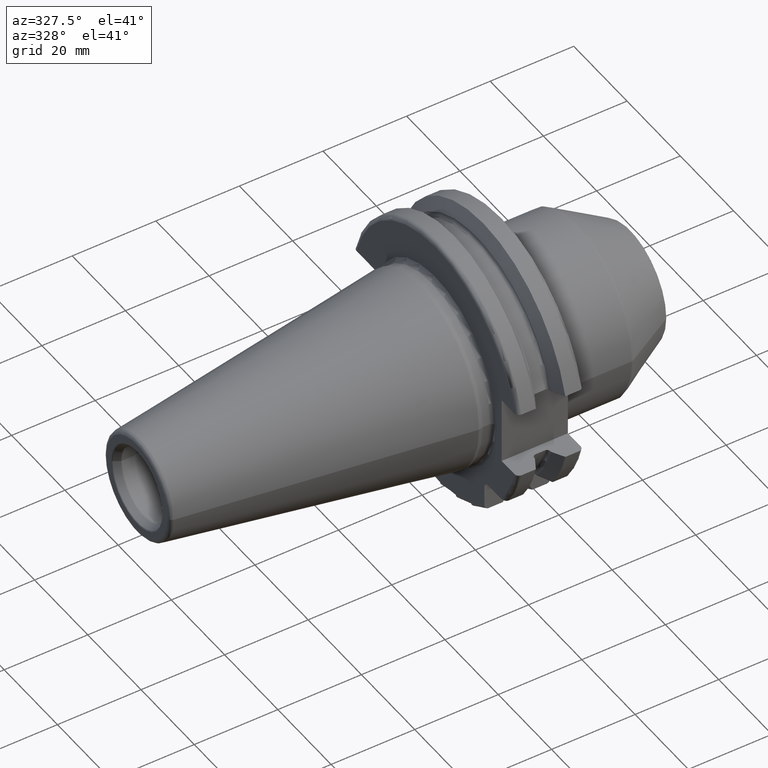
[diagram: clean part render]
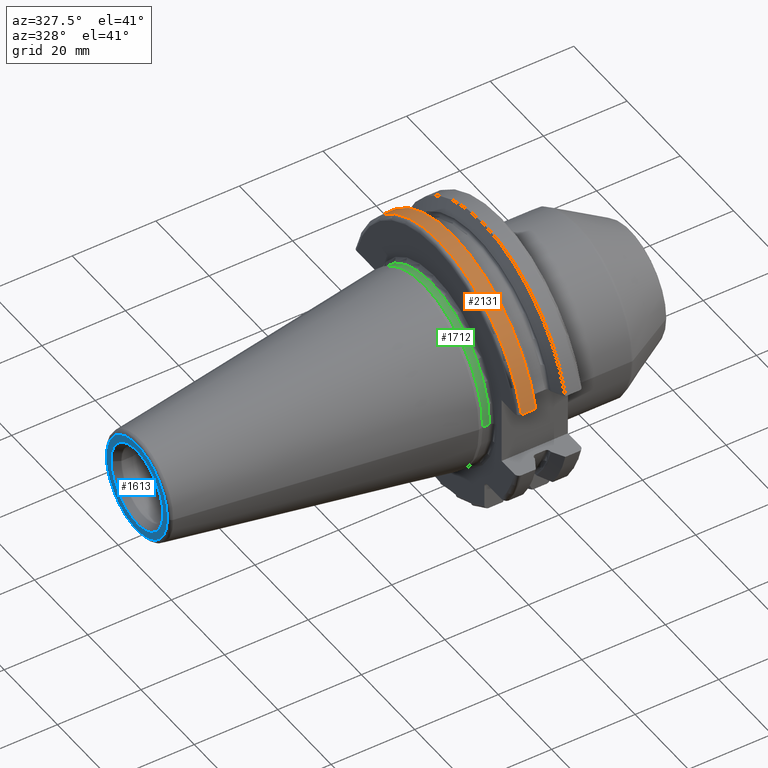
[diagram: same view with three faces highlighted in distinct colors, each labeled with its STEP entity id]
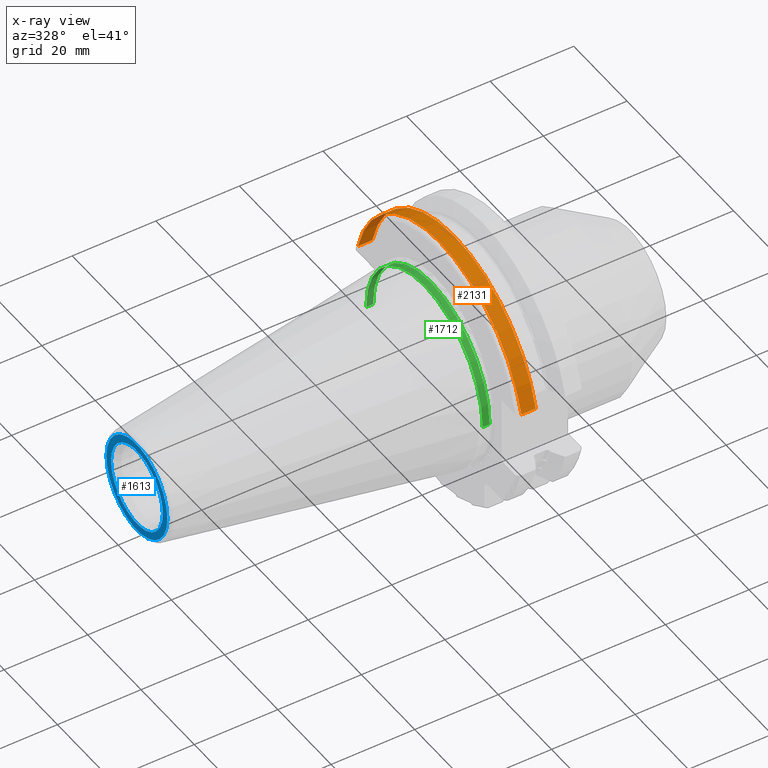
[diagram: x-ray of the same camera — body ghosted, the three highlighted faces saturated]
A machine part, auxiliary view with three faces highlighted in distinct colors.
The next image is the same camera in x-ray (body ghosted, the three faces saturated) — at least one of them is partly hidden behind the body in this view.
Their STEP definitions:

[orange] entity #2131 — the highlighted cylindrical surface (partial cylindrical patch) has radius 31.7625 mm, axis along (1, 0, 0).
#269=CARTESIAN_POINT('',(7.645946479578E0,3.071231684927E1,8.1E0));
#281=CARTESIAN_POINT('',(7.645946479578E0,-3.071231684927E1,8.1E0));
#412=DIRECTION('',(1.E0,0.E0,0.E0));
#413=VECTOR('',#412,3.445946479578E0);
#414=CARTESIAN_POINT('',(4.2E0,3.071231684927E1,8.1E0));
#415=LINE('',#414,#413);
#416=CARTESIAN_POINT('',(7.645946479578E0,0.E0,0.E0));
#417=DIRECTION('',(1.E0,0.E0,0.E0));
#418=DIRECTION('',(0.E0,9.669363825036E-1,2.550177095632E-1));
#419=AXIS2_PLACEMENT_3D('',#416,#417,#418);
#421=DIRECTION('',(1.E0,0.E0,0.E0));
#422=VECTOR('',#421,3.445946479578E0);
#423=CARTESIAN_POINT('',(4.2E0,-3.071231684927E1,8.1E0));
#424=LINE('',#423,#422);
#454=CARTESIAN_POINT('',(4.2E0,0.E0,0.E0));
#455=DIRECTION('',(1.E0,0.E0,0.E0));
#456=DIRECTION('',(0.E0,9.669363825036E-1,2.550177095632E-1));
#457=AXIS2_PLACEMENT_3D('',#454,#455,#456);
#1458=VERTEX_POINT('',#269);
#1459=VERTEX_POINT('',#281);
#1486=CARTESIAN_POINT('',(4.2E0,3.071231684927E1,8.1E0));
#1487=VERTEX_POINT('',#1486);
#1490=CARTESIAN_POINT('',(4.2E0,-3.071231684927E1,8.1E0));
#1491=VERTEX_POINT('',#1490);
#2119=CARTESIAN_POINT('',(-7.2615E1,0.E0,0.E0));
#2120=DIRECTION('',(1.E0,0.E0,0.E0));
#2121=DIRECTION('',(0.E0,-1.E0,0.E0));
#2122=AXIS2_PLACEMENT_3D('',#2119,#2120,#2121);
#2123=CYLINDRICAL_SURFACE('',#2122,3.17625E1);
#2124=ORIENTED_EDGE('',*,*,#1952,.T.);
#2125=ORIENTED_EDGE('',*,*,#1986,.T.);
#2126=ORIENTED_EDGE('',*,*,#2018,.F.);
#2128=ORIENTED_EDGE('',*,*,#2127,.F.);
#2129=EDGE_LOOP('',(#2124,#2125,#2126,#2128));
#2130=FACE_OUTER_BOUND('',#2129,.F.);
#2131=ADVANCED_FACE('',(#2130),#2123,.T.);
#420=CIRCLE('',#419,3.17625E1);
#458=CIRCLE('',#457,3.17625E1);
#1952=EDGE_CURVE('',#1487,#1458,#415,.T.);
#1986=EDGE_CURVE('',#1458,#1459,#420,.T.);
#2018=EDGE_CURVE('',#1491,#1459,#424,.T.);
#2127=EDGE_CURVE('',#1487,#1491,#458,.T.);

[blue] entity #1613 — the highlighted planar face has unit normal (1, 0, 0).
#2=CARTESIAN_POINT('',(-6.825E1,0.E0,0.E0));
#3=DIRECTION('',(-1.E0,0.E0,0.E0));
#4=DIRECTION('',(0.E0,1.E0,0.E0));
#5=AXIS2_PLACEMENT_3D('',#2,#3,#4);
#7=CARTESIAN_POINT('',(-6.825E1,0.E0,0.E0));
#8=DIRECTION('',(1.E0,0.E0,0.E0));
#9=DIRECTION('',(0.E0,1.E0,0.E0));
#10=AXIS2_PLACEMENT_3D('',#7,#8,#9);
#12=CARTESIAN_POINT('',(-6.825E1,0.E0,0.E0));
#13=DIRECTION('',(1.E0,0.E0,0.E0));
#14=DIRECTION('',(0.E0,1.E0,0.E0));
#15=AXIS2_PLACEMENT_3D('',#12,#13,#14);
#17=CARTESIAN_POINT('',(-6.825E1,0.E0,0.E0));
#18=DIRECTION('',(1.E0,0.E0,0.E0));
#19=DIRECTION('',(0.E0,-1.E0,0.E0));
#20=AXIS2_PLACEMENT_3D('',#17,#18,#19);
#1333=CARTESIAN_POINT('',(-6.825E1,1.144954820082E1,0.E0));
#1335=VERTEX_POINT('',#1333);
#1337=CARTESIAN_POINT('',(-6.825E1,-1.144954820082E1,0.E0));
#1339=VERTEX_POINT('',#1337);
#1396=CARTESIAN_POINT('',(-6.825E1,9.730940107676E0,0.E0));
#1397=CARTESIAN_POINT('',(-6.825E1,-9.730940107676E0,0.E0));
#1398=VERTEX_POINT('',#1396);
#1399=VERTEX_POINT('',#1397);
#1596=CARTESIAN_POINT('',(-6.825E1,0.E0,0.E0));
#1597=DIRECTION('',(1.E0,0.E0,0.E0));
#1598=DIRECTION('',(0.E0,-1.E0,0.E0));
#1599=AXIS2_PLACEMENT_3D('',#1596,#1597,#1598);
#1600=PLANE('',#1599);
#1602=ORIENTED_EDGE('',*,*,#1601,.F.);
#1604=ORIENTED_EDGE('',*,*,#1603,.T.);
#1605=EDGE_LOOP('',(#1602,#1604));
#1606=FACE_OUTER_BOUND('',#1605,.F.);
#1608=ORIENTED_EDGE('',*,*,#1607,.F.);
#1610=ORIENTED_EDGE('',*,*,#1609,.F.);
#1611=EDGE_LOOP('',(#1608,#1610));
#1612=FACE_BOUND('',#1611,.F.);
#1613=ADVANCED_FACE('',(#1606,#1612),#1600,.F.);
#6=CIRCLE('',#5,1.144954820082E1);
#11=CIRCLE('',#10,1.144954820082E1);
#16=CIRCLE('',#15,9.730940107676E0);
#21=CIRCLE('',#20,9.730940107676E0);
#1601=EDGE_CURVE('',#1335,#1339,#6,.T.);
#1603=EDGE_CURVE('',#1335,#1339,#11,.T.);
#1607=EDGE_CURVE('',#1398,#1399,#16,.T.);
#1609=EDGE_CURVE('',#1399,#1398,#21,.T.);

[green] entity #1712 — the highlighted cylindrical surface (partial cylindrical patch) has radius 21.875 mm, axis along (1, 0, 0).
#73=CARTESIAN_POINT('',(5.5E-1,0.E0,0.E0));
#74=DIRECTION('',(1.E0,0.E0,0.E0));
#75=DIRECTION('',(0.E0,1.E0,0.E0));
#76=AXIS2_PLACEMENT_3D('',#73,#74,#75);
#78=CARTESIAN_POINT('',(2.2E0,0.E0,0.E0));
#79=DIRECTION('',(1.E0,0.E0,0.E0));
#80=DIRECTION('',(0.E0,1.E0,0.E0));
#81=AXIS2_PLACEMENT_3D('',#78,#79,#80);
#83=DIRECTION('',(-1.E0,0.E0,0.E0));
#84=VECTOR('',#83,1.65E0);
#85=CARTESIAN_POINT('',(2.2E0,2.1875E1,0.E0));
#86=LINE('',#85,#84);
#87=DIRECTION('',(-1.E0,0.E0,0.E0));
#88=VECTOR('',#87,1.65E0);
#89=CARTESIAN_POINT('',(2.2E0,-2.1875E1,0.E0));
#90=LINE('',#89,#88);
#1340=CARTESIAN_POINT('',(2.2E0,2.1875E1,0.E0));
#1341=CARTESIAN_POINT('',(5.5E-1,2.1875E1,0.E0));
#1342=VERTEX_POINT('',#1340);
#1343=VERTEX_POINT('',#1341);
#1345=CARTESIAN_POINT('',(2.2E0,-2.1875E1,0.E0));
#1347=VERTEX_POINT('',#1345);
#1348=CARTESIAN_POINT('',(5.5E-1,-2.1875E1,0.E0));
#1349=VERTEX_POINT('',#1348);
#1698=CARTESIAN_POINT('',(-7.2615E1,0.E0,0.E0));
#1699=DIRECTION('',(1.E0,0.E0,0.E0));
#1700=DIRECTION('',(0.E0,-1.E0,0.E0));
#1701=AXIS2_PLACEMENT_3D('',#1698,#1699,#1700);
#1702=CYLINDRICAL_SURFACE('',#1701,2.1875E1);
#1704=ORIENTED_EDGE('',*,*,#1703,.F.);
#1706=ORIENTED_EDGE('',*,*,#1705,.T.);
#1708=ORIENTED_EDGE('',*,*,#1707,.T.);
#1709=ORIENTED_EDGE('',*,*,#1691,.F.);
#1710=EDGE_LOOP('',(#1704,#1706,#1708,#1709));
#1711=FACE_OUTER_BOUND('',#1710,.F.);
#1712=ADVANCED_FACE('',(#1711),#1702,.T.);
#77=CIRCLE('',#76,2.1875E1);
#82=CIRCLE('',#81,2.1875E1);
#1691=EDGE_CURVE('',#1343,#1349,#77,.T.);
#1703=EDGE_CURVE('',#1342,#1343,#86,.T.);
#1705=EDGE_CURVE('',#1342,#1347,#82,.T.);
#1707=EDGE_CURVE('',#1347,#1349,#90,.T.);